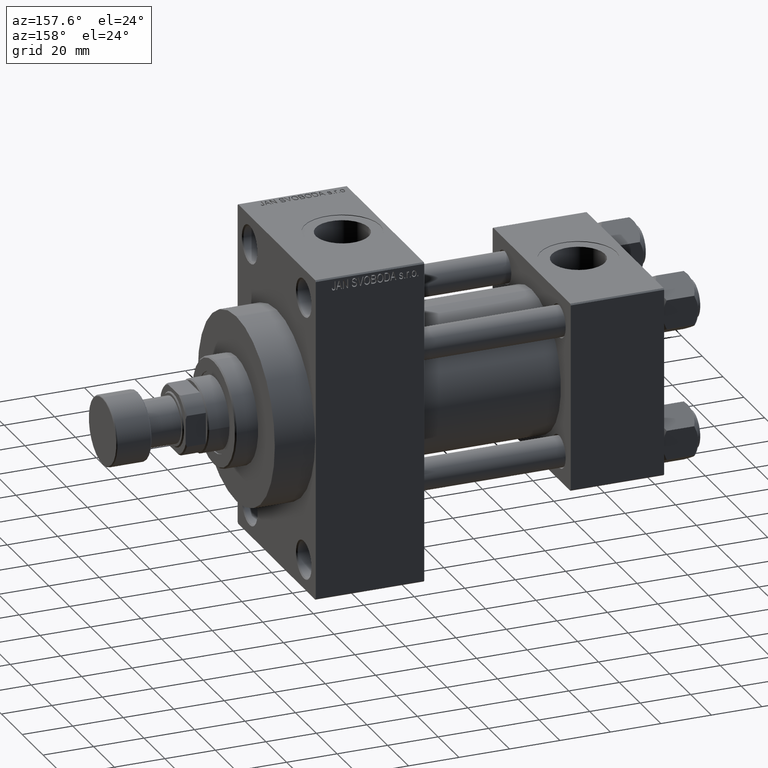
[diagram: clean part render]
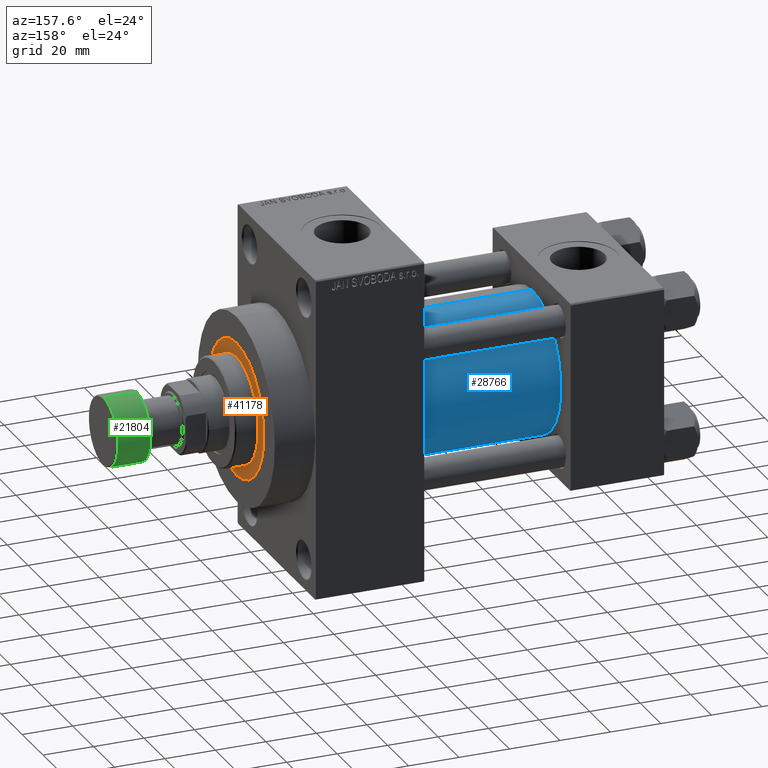
[diagram: same view with three faces highlighted in distinct colors, each labeled with its STEP entity id]
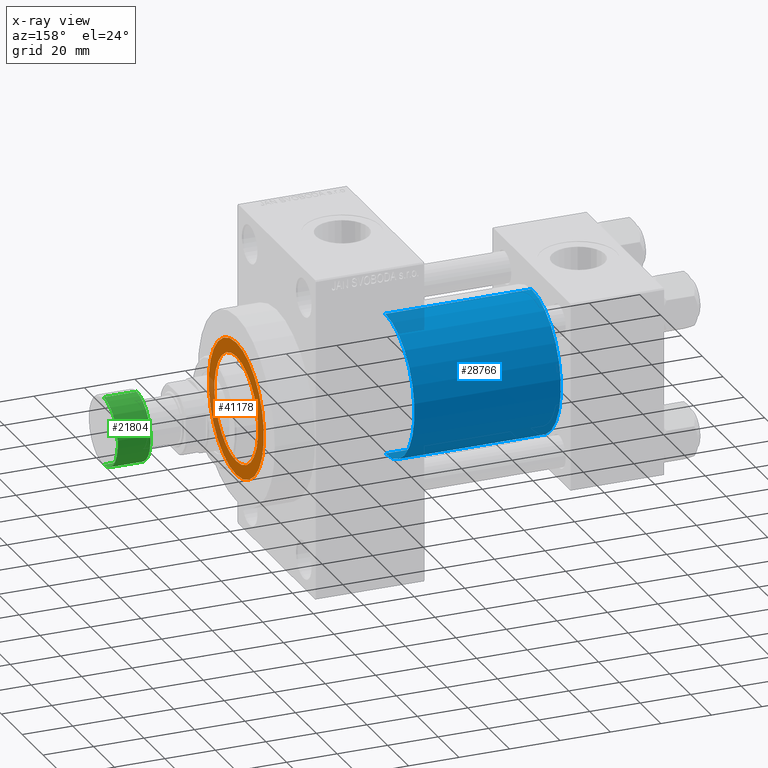
[diagram: x-ray of the same camera — body ghosted, the three highlighted faces saturated]
A machine part, auxiliary view with three faces highlighted in distinct colors.
The next image is the same camera in x-ray (body ghosted, the three faces saturated) — at least one of them is partly hidden behind the body in this view.
Their STEP definitions:

[orange] entity #41178 — the highlighted planar face has unit normal (1, 0, 0).
#651 = VERTEX_POINT ( 'NONE', #41410 ) ;
#1103 = FACE_OUTER_BOUND ( 'NONE', #3541, .T. ) ;
#1716 = ORIENTED_EDGE ( 'NONE', *, *, #9595, .F. ) ;
#1728 = CIRCLE ( 'NONE', #47139, 21.00000000000000000 ) ;
#2338 = DIRECTION ( 'NONE',  ( 0.000000000000000000, 0.000000000000000000, 1.000000000000000000 ) ) ;
#2936 = ORIENTED_EDGE ( 'NONE', *, *, #35848, .T. ) ;
#3098 = AXIS2_PLACEMENT_3D ( 'NONE', #35588, #2338, #43541 ) ;
#3199 = CARTESIAN_POINT ( 'NONE',  ( 26.50000000000000355, 3.245314017740486554E-15, 43.25999999999999801 ) ) ;
#3213 = DIRECTION ( 'NONE',  ( 0.000000000000000000, 0.000000000000000000, 1.000000000000000000 ) ) ;
#3541 = EDGE_LOOP ( 'NONE', ( #2936, #21795 ) ) ;
#7415 = DIRECTION ( 'NONE',  ( 0.000000000000000000, 0.000000000000000000, 1.000000000000000000 ) ) ;
#9595 = EDGE_CURVE ( 'NONE', #651, #10279, #1728, .T. ) ;
#9832 = AXIS2_PLACEMENT_3D ( 'NONE', #36226, #3213, #17897 ) ;
#10279 = VERTEX_POINT ( 'NONE', #19380 ) ;
#11119 = VERTEX_POINT ( 'NONE', #3199 ) ;
#12193 = DIRECTION ( 'NONE',  ( 0.000000000000000000, 0.000000000000000000, 1.000000000000000000 ) ) ;
#15791 = PLANE ( 'NONE',  #38768 ) ;
#15948 = DIRECTION ( 'NONE',  ( 1.000000000000000000, 0.000000000000000000, 0.000000000000000000 ) ) ;
#17897 = DIRECTION ( 'NONE',  ( 1.000000000000000000, 0.000000000000000000, 0.000000000000000000 ) ) ;
#19380 = CARTESIAN_POINT ( 'NONE',  ( 21.00000000000000000, 2.571758278209441661E-15, 43.25999999999999801 ) ) ;
#20025 = AXIS2_PLACEMENT_3D ( 'NONE', #37263, #7415, #40411 ) ;
#21795 = ORIENTED_EDGE ( 'NONE', *, *, #25790, .T. ) ;
#23422 = CARTESIAN_POINT ( 'NONE',  ( 0.000000000000000000, 0.000000000000000000, 43.25999999999999801 ) ) ;
#23686 = CIRCLE ( 'NONE', #9832, 26.50000000000000355 ) ;
#25790 = EDGE_CURVE ( 'NONE', #11119, #26289, #23686, .T. ) ;
#26289 = VERTEX_POINT ( 'NONE', #31430 ) ;
#26898 = DIRECTION ( 'NONE',  ( 1.000000000000000000, 0.000000000000000000, -0.000000000000000000 ) ) ;
#28664 = ORIENTED_EDGE ( 'NONE', *, *, #30943, .F. ) ;
#30026 = CIRCLE ( 'NONE', #20025, 21.00000000000000000 ) ;
#30513 = CARTESIAN_POINT ( 'NONE',  ( 0.000000000000000000, 0.000000000000000000, 43.25999999999999801 ) ) ;
#30807 = CIRCLE ( 'NONE', #3098, 26.50000000000000355 ) ;
#30943 = EDGE_CURVE ( 'NONE', #10279, #651, #30026, .T. ) ;
#31430 = CARTESIAN_POINT ( 'NONE',  ( -26.50000000000000355, 0.000000000000000000, 43.25999999999999801 ) ) ;
#34111 = FACE_BOUND ( 'NONE', #45028, .T. ) ;
#35588 = CARTESIAN_POINT ( 'NONE',  ( 0.000000000000000000, 0.000000000000000000, 43.25999999999999801 ) ) ;
#35848 = EDGE_CURVE ( 'NONE', #26289, #11119, #30807, .T. ) ;
#36226 = CARTESIAN_POINT ( 'NONE',  ( 0.000000000000000000, 0.000000000000000000, 43.25999999999999801 ) ) ;
#37263 = CARTESIAN_POINT ( 'NONE',  ( 0.000000000000000000, 0.000000000000000000, 43.25999999999999801 ) ) ;
#38768 = AXIS2_PLACEMENT_3D ( 'NONE', #30513, #12193, #26898 ) ;
#40411 = DIRECTION ( 'NONE',  ( 1.000000000000000000, 0.000000000000000000, 0.000000000000000000 ) ) ;
#41178 = ADVANCED_FACE ( 'NONE', ( #34111, #1103 ), #15791, .T. ) ;
#41410 = CARTESIAN_POINT ( 'NONE',  ( -21.00000000000000000, 0.000000000000000000, 43.25999999999999801 ) ) ;
#43541 = DIRECTION ( 'NONE',  ( 1.000000000000000000, 0.000000000000000000, 0.000000000000000000 ) ) ;
#45028 = EDGE_LOOP ( 'NONE', ( #1716, #28664 ) ) ;
#45114 = DIRECTION ( 'NONE',  ( 0.000000000000000000, 0.000000000000000000, 1.000000000000000000 ) ) ;
#47139 = AXIS2_PLACEMENT_3D ( 'NONE', #23422, #45114, #15948 ) ;

[blue] entity #28766 — the highlighted cylindrical surface (partial cylindrical patch) has radius 28 mm, axis along (-1, -0, -0).
#563 = DIRECTION ( 'NONE',  ( -1.000000000000000000, -0.000000000000000000, -0.000000000000000000 ) ) ;
#906 = EDGE_CURVE ( 'NONE', #39905, #32947, #33374, .T. ) ;
#3369 = EDGE_CURVE ( 'NONE', #32947, #13931, #4171, .T. ) ;
#3479 = CARTESIAN_POINT ( 'NONE',  ( 95.00000000000000000, -2.602085213965210642E-15, 28.00000000000000000 ) ) ;
#3572 = CARTESIAN_POINT ( 'NONE',  ( 95.00000000000000000, -2.602085213965210642E-15, 0.000000000000000000 ) ) ;
#4171 = LINE ( 'NONE', #18865, #47185 ) ;
#4506 = VERTEX_POINT ( 'NONE', #32627 ) ;
#6091 = AXIS2_PLACEMENT_3D ( 'NONE', #28702, #10380, #25095 ) ;
#6484 = DIRECTION ( 'NONE',  ( 0.000000000000000000, 0.000000000000000000, 1.000000000000000000 ) ) ;
#6685 = CIRCLE ( 'NONE', #41318, 28.00000000000000000 ) ;
#8508 = ORIENTED_EDGE ( 'NONE', *, *, #3369, .F. ) ;
#10306 = AXIS2_PLACEMENT_3D ( 'NONE', #3572, #29354, #33197 ) ;
#10380 = DIRECTION ( 'NONE',  ( -1.000000000000000000, -0.000000000000000000, -0.000000000000000000 ) ) ;
#10760 = CARTESIAN_POINT ( 'NONE',  ( 95.00000000000000000, 8.269258236473776482E-16, -28.00000000000000000 ) ) ;
#13273 = FACE_OUTER_BOUND ( 'NONE', #36345, .T. ) ;
#13931 = VERTEX_POINT ( 'NONE', #34863 ) ;
#15323 = ORIENTED_EDGE ( 'NONE', *, *, #23339, .T. ) ;
#18865 = CARTESIAN_POINT ( 'NONE',  ( 95.00000000000000000, -2.602085213965210642E-15, 28.00000000000000000 ) ) ;
#19362 = EDGE_CURVE ( 'NONE', #39905, #4506, #29326, .T. ) ;
#23339 = EDGE_CURVE ( 'NONE', #4506, #13931, #6685, .T. ) ;
#24800 = CARTESIAN_POINT ( 'NONE',  ( 37.00000000000000000, -2.602085213965210642E-15, 0.000000000000000000 ) ) ;
#25095 = DIRECTION ( 'NONE',  ( 0.000000000000000000, 0.000000000000000000, 1.000000000000000000 ) ) ;
#25200 = ORIENTED_EDGE ( 'NONE', *, *, #906, .F. ) ;
#25465 = DIRECTION ( 'NONE',  ( -1.000000000000000000, -0.000000000000000000, -0.000000000000000000 ) ) ;
#28702 = CARTESIAN_POINT ( 'NONE',  ( 95.00000000000000000, -2.602085213965210642E-15, 0.000000000000000000 ) ) ;
#28766 = ADVANCED_FACE ( 'NONE', ( #13273 ), #40013, .T. ) ;
#29326 = LINE ( 'NONE', #10760, #41185 ) ;
#29354 = DIRECTION ( 'NONE',  ( 1.000000000000000000, 0.000000000000000000, 0.000000000000000000 ) ) ;
#32627 = CARTESIAN_POINT ( 'NONE',  ( 37.00000000000000000, 8.269258236473776482E-16, -28.00000000000000000 ) ) ;
#32947 = VERTEX_POINT ( 'NONE', #3479 ) ;
#33197 = DIRECTION ( 'NONE',  ( 0.000000000000000000, 0.000000000000000000, -1.000000000000000000 ) ) ;
#33374 = CIRCLE ( 'NONE', #10306, 28.00000000000000000 ) ;
#34856 = CARTESIAN_POINT ( 'NONE',  ( 95.00000000000000000, 8.269258236473776482E-16, -28.00000000000000000 ) ) ;
#34863 = CARTESIAN_POINT ( 'NONE',  ( 37.00000000000000000, -2.602085213965210642E-15, 28.00000000000000000 ) ) ;
#36345 = EDGE_LOOP ( 'NONE', ( #25200, #43280, #15323, #8508 ) ) ;
#39905 = VERTEX_POINT ( 'NONE', #34856 ) ;
#40013 = CYLINDRICAL_SURFACE ( 'NONE', #6091, 28.00000000000000000 ) ;
#41185 = VECTOR ( 'NONE', #25465, 1000.000000000000000 ) ;
#41318 = AXIS2_PLACEMENT_3D ( 'NONE', #24800, #43336, #6484 ) ;
#43280 = ORIENTED_EDGE ( 'NONE', *, *, #19362, .T. ) ;
#43336 = DIRECTION ( 'NONE',  ( 1.000000000000000000, -0.000000000000000000, 0.000000000000000000 ) ) ;
#47185 = VECTOR ( 'NONE', #563, 1000.000000000000000 ) ;

[green] entity #21804 — the highlighted cylindrical surface (partial cylindrical patch) has radius 13.5 mm, axis along (1, 0, 0).
#539 = EDGE_CURVE ( 'NONE', #6640, #9878, #46424, .T. ) ;
#712 = DIRECTION ( 'NONE',  ( 1.000000000000000000, 0.000000000000000000, 0.000000000000000000 ) ) ;
#2458 = ORIENTED_EDGE ( 'NONE', *, *, #539, .T. ) ;
#2671 = LINE ( 'NONE', #47243, #27948 ) ;
#3180 = CARTESIAN_POINT ( 'NONE',  ( 13.50000000000000000, 0.000000000000000000, -0.5000000000000004441 ) ) ;
#6640 = VERTEX_POINT ( 'NONE', #25751 ) ;
#9878 = VERTEX_POINT ( 'NONE', #10854 ) ;
#10270 = AXIS2_PLACEMENT_3D ( 'NONE', #11080, #25792, #712 ) ;
#10830 = EDGE_CURVE ( 'NONE', #6640, #20833, #17472, .T. ) ;
#10854 = CARTESIAN_POINT ( 'NONE',  ( -13.50000000000000000, 1.653273178848926867E-15, -13.50000000000000000 ) ) ;
#11080 = CARTESIAN_POINT ( 'NONE',  ( 0.000000000000000000, 0.000000000000000000, -13.50000000000000000 ) ) ;
#11619 = DIRECTION ( 'NONE',  ( 1.000000000000000000, 0.000000000000000000, 0.000000000000000000 ) ) ;
#12104 = FACE_OUTER_BOUND ( 'NONE', #31504, .T. ) ;
#12233 = EDGE_CURVE ( 'NONE', #9878, #36478, #2671, .T. ) ;
#15340 = DIRECTION ( 'NONE',  ( 1.000000000000000000, 0.000000000000000000, 0.000000000000000000 ) ) ;
#15988 = EDGE_CURVE ( 'NONE', #36478, #20833, #38862, .T. ) ;
#16645 = AXIS2_PLACEMENT_3D ( 'NONE', #45570, #44854, #11619 ) ;
#17472 = LINE ( 'NONE', #21577, #34082 ) ;
#19838 = ORIENTED_EDGE ( 'NONE', *, *, #10830, .F. ) ;
#20833 = VERTEX_POINT ( 'NONE', #3180 ) ;
#21577 = CARTESIAN_POINT ( 'NONE',  ( 13.50000000000000000, 0.000000000000000000, -14.00000000000000000 ) ) ;
#21804 = ADVANCED_FACE ( 'NONE', ( #12104 ), #37391, .T. ) ;
#25751 = CARTESIAN_POINT ( 'NONE',  ( 13.50000000000000000, 0.000000000000000000, -13.50000000000000000 ) ) ;
#25792 = DIRECTION ( 'NONE',  ( 0.000000000000000000, 0.000000000000000000, 1.000000000000000000 ) ) ;
#27948 = VECTOR ( 'NONE', #32794, 1000.000000000000000 ) ;
#29821 = CARTESIAN_POINT ( 'NONE',  ( 0.000000000000000000, 0.000000000000000000, -0.5000000000000004441 ) ) ;
#31504 = EDGE_LOOP ( 'NONE', ( #2458, #46865, #40751, #19838 ) ) ;
#32794 = DIRECTION ( 'NONE',  ( 0.000000000000000000, 0.000000000000000000, 1.000000000000000000 ) ) ;
#34082 = VECTOR ( 'NONE', #36266, 1000.000000000000000 ) ;
#36266 = DIRECTION ( 'NONE',  ( 0.000000000000000000, 0.000000000000000000, 1.000000000000000000 ) ) ;
#36478 = VERTEX_POINT ( 'NONE', #42701 ) ;
#37391 = CYLINDRICAL_SURFACE ( 'NONE', #16645, 13.50000000000000000 ) ;
#38862 = CIRCLE ( 'NONE', #40402, 13.50000000000000000 ) ;
#40402 = AXIS2_PLACEMENT_3D ( 'NONE', #29821, #44019, #15340 ) ;
#40751 = ORIENTED_EDGE ( 'NONE', *, *, #15988, .T. ) ;
#42701 = CARTESIAN_POINT ( 'NONE',  ( -13.50000000000000000, 1.653273178848926867E-15, -0.5000000000000004441 ) ) ;
#44019 = DIRECTION ( 'NONE',  ( -0.000000000000000000, -0.000000000000000000, -1.000000000000000000 ) ) ;
#44854 = DIRECTION ( 'NONE',  ( 0.000000000000000000, 0.000000000000000000, 1.000000000000000000 ) ) ;
#45570 = CARTESIAN_POINT ( 'NONE',  ( 0.000000000000000000, 0.000000000000000000, -14.00000000000000000 ) ) ;
#46424 = CIRCLE ( 'NONE', #10270, 13.50000000000000000 ) ;
#46865 = ORIENTED_EDGE ( 'NONE', *, *, #12233, .T. ) ;
#47243 = CARTESIAN_POINT ( 'NONE',  ( -13.50000000000000000, 1.653273178848926867E-15, -14.00000000000000000 ) ) ;